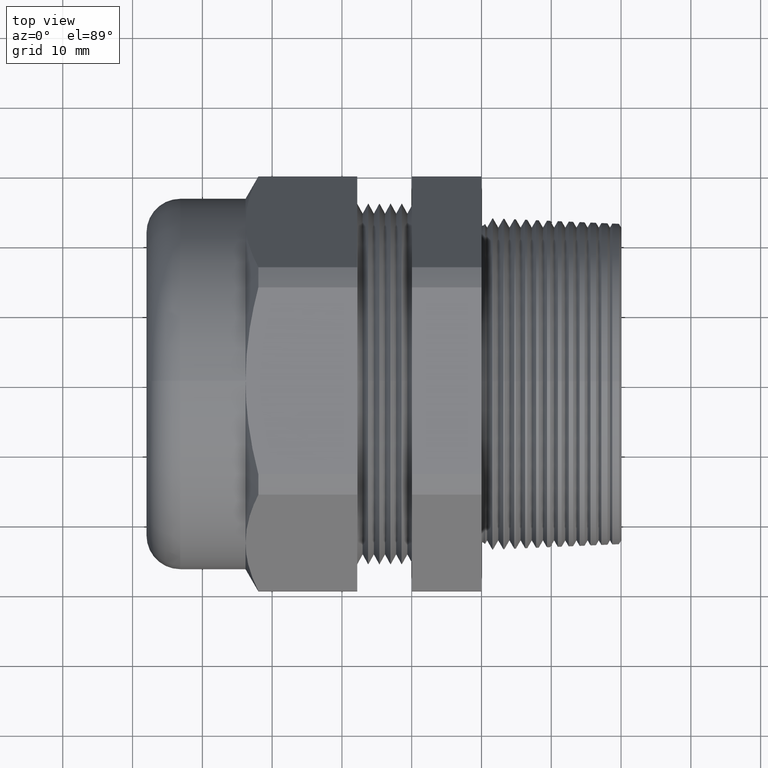
[diagram: clean part render]
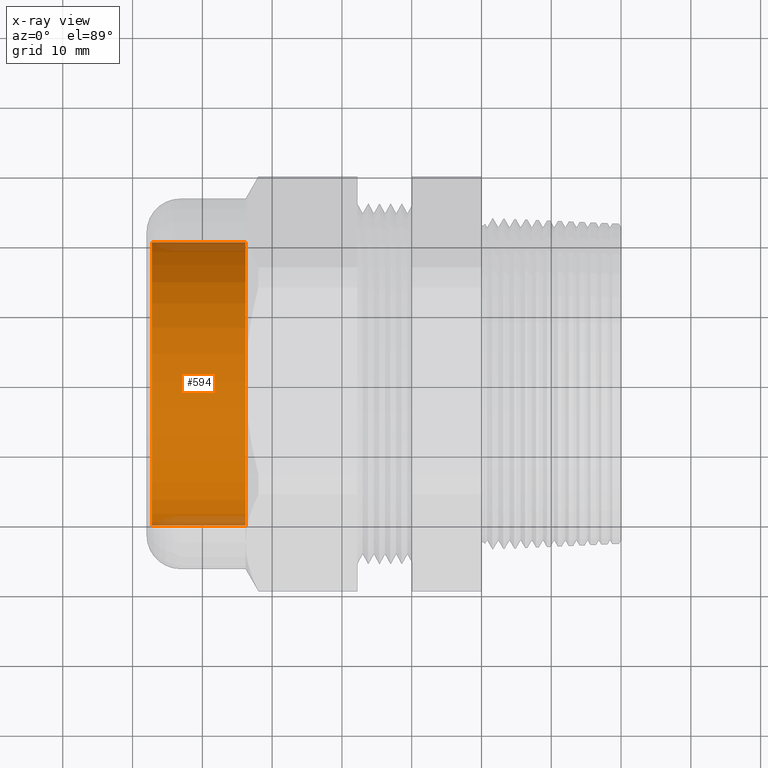
[diagram: x-ray — body ghosted, one internal face saturated and labeled with its STEP entity id]
A machine part, top view, then the same camera in x-ray: the body is ghosted and one INTERNAL B-rep face — a face not visible from any outside direction — is saturated and labeled: STEP entity #594.
In plain terms, the highlighted cylindrical surface (partial cylindrical patch) has radius 20.2946 mm, axis along (1, 0, 0).
Its self-contained STEP definition (entity closure, byte-faithful):
#594 = ADVANCED_FACE ( 'NONE', ( #2412 ), #2411, .T. ) ;
#595 = EDGE_LOOP ( 'NONE', ( #596, #597, #706, #631 ) ) ;
#596 = ORIENTED_EDGE ( 'NONE', *, *, #606, .T. ) ;
#597 = ORIENTED_EDGE ( 'NONE', *, *, #598, .T. ) ;
#598 = EDGE_CURVE ( 'NONE', #663, #705, #2410, .T. ) ;
#606 = EDGE_CURVE ( 'NONE', #662, #663, #2391, .T. ) ;
#630 = VERTEX_POINT ( 'NONE', #2461 ) ;
#631 = ORIENTED_EDGE ( 'NONE', *, *, #632, .F. ) ;
#632 = EDGE_CURVE ( 'NONE', #662, #630, #2460, .T. ) ;
#662 = VERTEX_POINT ( 'NONE', #2530 ) ;
#663 = VERTEX_POINT ( 'NONE', #2529 ) ;
#705 = VERTEX_POINT ( 'NONE', #2636 ) ;
#706 = ORIENTED_EDGE ( 'NONE', *, *, #707, .F. ) ;
#707 = EDGE_CURVE ( 'NONE', #630, #705, #2635, .T. ) ;
#2387 = DIRECTION ( 'NONE',  ( 0.0000000000000000000, -1.000000000000000000, 0.0000000000000000000 ) ) ;
#2388 = DIRECTION ( 'NONE',  ( 1.000000000000000000, 1.214306433183765200E-016, 0.0000000000000000000 ) ) ;
#2389 = CARTESIAN_POINT ( 'NONE',  ( -1.859999999999999900, -2.715754615699450700E-016, 0.0000000000000000000 ) ) ;
#2390 = AXIS2_PLACEMENT_3D ( 'NONE', #2389, #2388, #2387 ) ;
#2391 = CIRCLE ( 'NONE', #2390, 0.7990000000000001500 ) ;
#2403 = DIRECTION ( 'NONE',  ( 1.000000000000000000, 1.214306433183765200E-016, 0.0000000000000000000 ) ) ;
#2404 = VECTOR ( 'NONE', #2403, 39.37007874015748100 ) ;
#2405 = CARTESIAN_POINT ( 'NONE',  ( 0.3764656411965715500, -0.7990000000000001500, 9.784927925187353900E-017 ) ) ;
#2406 = DIRECTION ( 'NONE',  ( -8.547709617222348300E-017, 1.000000000000000000, 0.0000000000000000000 ) ) ;
#2407 = DIRECTION ( 'NONE',  ( 1.000000000000000000, 1.214306433183765200E-016, 0.0000000000000000000 ) ) ;
#2408 = CARTESIAN_POINT ( 'NONE',  ( 0.3764656411965715000, 0.0000000000000000000, 0.0000000000000000000 ) ) ;
#2409 = AXIS2_PLACEMENT_3D ( 'NONE', #2408, #2407, #2406 ) ;
#2410 = LINE ( 'NONE', #2405, #2404 ) ;
#2411 = CYLINDRICAL_SURFACE ( 'NONE', #2409, 0.7990000000000001500 ) ;
#2412 = FACE_OUTER_BOUND ( 'NONE', #595, .T. ) ;
#2457 = DIRECTION ( 'NONE',  ( 1.000000000000000000, 1.214306433183765200E-016, 0.0000000000000000000 ) ) ;
#2458 = VECTOR ( 'NONE', #2457, 39.37007874015748100 ) ;
#2459 = CARTESIAN_POINT ( 'NONE',  ( 0.3764656411965714400, 0.7990000000000001500, 0.0000000000000000000 ) ) ;
#2460 = LINE ( 'NONE', #2459, #2458 ) ;
#2461 = CARTESIAN_POINT ( 'NONE',  ( -1.331250000000000300, 0.7989999999999998200, 0.0000000000000000000 ) ) ;
#2529 = CARTESIAN_POINT ( 'NONE',  ( -1.859999999999999900, -0.7990000000000003800, 9.784927925187353900E-017 ) ) ;
#2530 = CARTESIAN_POINT ( 'NONE',  ( -1.859999999999999900, 0.7989999999999998200, 0.0000000000000000000 ) ) ;
#2631 = DIRECTION ( 'NONE',  ( 0.0000000000000000000, 1.000000000000000000, 0.0000000000000000000 ) ) ;
#2632 = DIRECTION ( 'NONE',  ( 1.000000000000000000, 1.214306433183765200E-016, 0.0000000000000000000 ) ) ;
#2633 = CARTESIAN_POINT ( 'NONE',  ( -1.331250000000000300, -2.073690089153535400E-016, 0.0000000000000000000 ) ) ;
#2634 = AXIS2_PLACEMENT_3D ( 'NONE', #2633, #2632, #2631 ) ;
#2635 = CIRCLE ( 'NONE', #2634, 0.7990000000000001500 ) ;
#2636 = CARTESIAN_POINT ( 'NONE',  ( -1.331250000000000300, -0.7990000000000003800, 9.784927925187353900E-017 ) ) ;